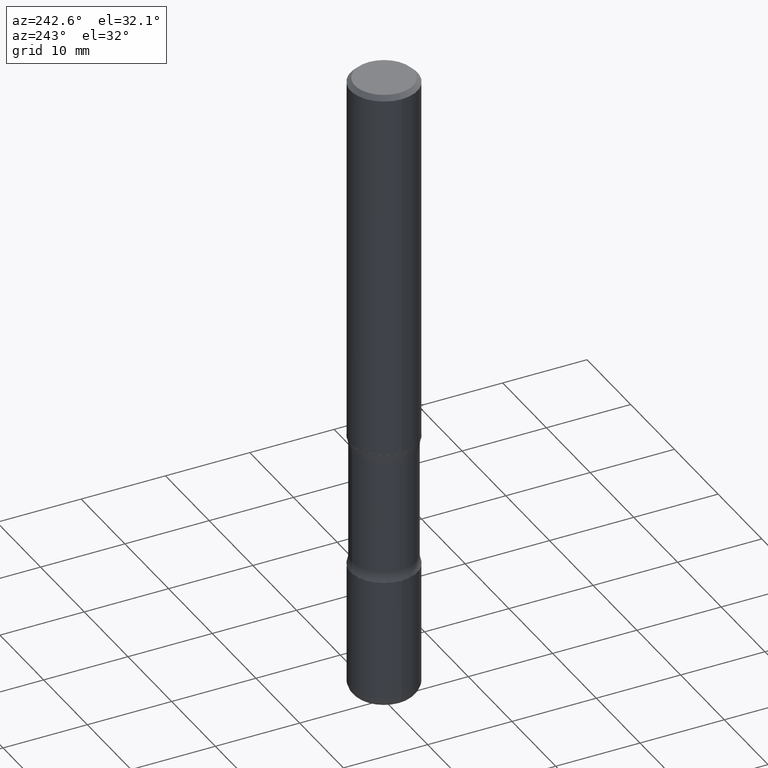
[diagram: clean part render]
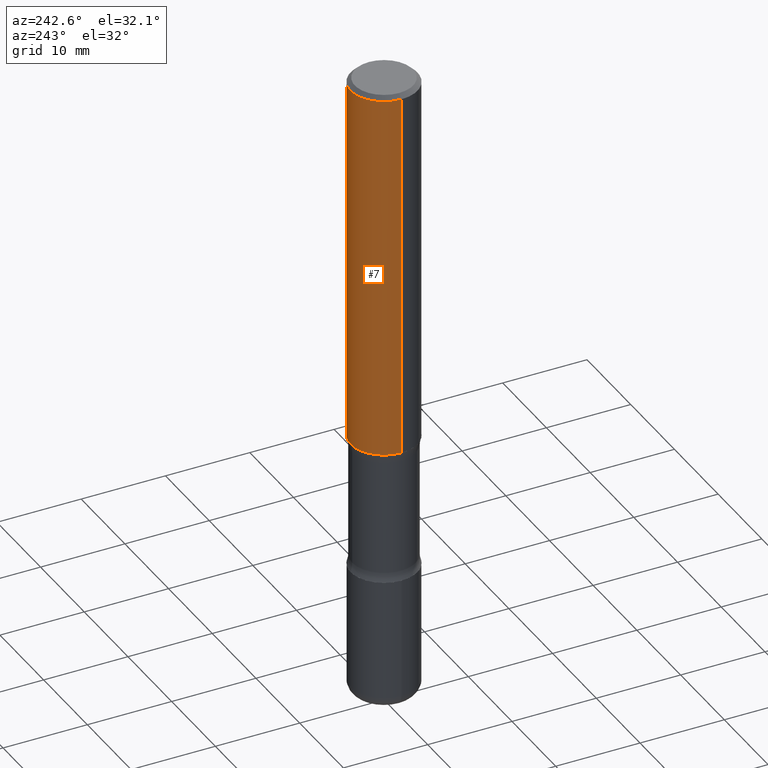
[diagram: same view with one face highlighted and labeled with its STEP entity id]
A machine part, auxiliary view. The second image highlights one B-rep face of the part: STEP entity #7.
In plain terms, the highlighted cylindrical surface (partial cylindrical patch) has radius 3.9687 mm, axis along (-0, 0, 1).
Its self-contained STEP definition (entity closure, byte-faithful):
#7 = ADVANCED_FACE ( 'NONE', ( #85 ), #369, .T. ) ;
#26 = VERTEX_POINT ( 'NONE', #294 ) ;
#30 = VECTOR ( 'NONE', #549, 39.37007874015748143 ) ;
#32 = LINE ( 'NONE', #332, #479 ) ;
#35 = CARTESIAN_POINT ( 'NONE',  ( -0.1562500000000000833, -1.979737960251025472E-15, -1.750000000000000444 ) ) ;
#36 = AXIS2_PLACEMENT_3D ( 'NONE', #46, #327, #501 ) ;
#46 = CARTESIAN_POINT ( 'NONE',  ( 0.000000000000000000, 0.000000000000000000, 0.000000000000000000 ) ) ;
#71 = CIRCLE ( 'NONE', #506, 0.1562499999999998612 ) ;
#76 = EDGE_LOOP ( 'NONE', ( #348, #551, #532, #443 ) ) ;
#85 = FACE_OUTER_BOUND ( 'NONE', #76, .T. ) ;
#119 = CARTESIAN_POINT ( 'NONE',  ( -0.1562499999999999722, 1.110223024625156343E-15, -7.685836078523288357E-30 ) ) ;
#134 = DIRECTION ( 'NONE',  ( -2.445468806185136597E-29, 3.491481338843145583E-15, 1.000000000000000000 ) ) ;
#220 = DIRECTION ( 'NONE',  ( 1.000000000000000000, -6.982962677686266711E-15, 0.000000000000000000 ) ) ;
#237 = EDGE_CURVE ( 'NONE', #401, #363, #32, .T. ) ;
#268 = DIRECTION ( 'NONE',  ( -2.445468806185136597E-29, 3.491481338843145583E-15, 1.000000000000000000 ) ) ;
#271 = EDGE_CURVE ( 'NONE', #286, #26, #285, .T. ) ;
#285 = LINE ( 'NONE', #119, #30 ) ;
#286 = VERTEX_POINT ( 'NONE', #35 ) ;
#294 = CARTESIAN_POINT ( 'NONE',  ( -0.1562499999999998612, 1.021258291611615284E-15, -0.02000000000000000042 ) ) ;
#302 = DIRECTION ( 'NONE',  ( 1.000000000000000000, -6.982962677686265133E-15, 0.000000000000000000 ) ) ;
#327 = DIRECTION ( 'NONE',  ( -2.445468806185136597E-29, 3.491481338843145583E-15, 1.000000000000000000 ) ) ;
#332 = CARTESIAN_POINT ( 'NONE',  ( 0.1562499999999999722, -1.091087918388478976E-15, 7.619026212181148976E-30 ) ) ;
#348 = ORIENTED_EDGE ( 'NONE', *, *, #397, .T. ) ;
#352 = CARTESIAN_POINT ( 'NONE',  ( 4.890937612370273159E-31, -6.982962677686291609E-17, -0.02000000000000000042 ) ) ;
#363 = VERTEX_POINT ( 'NONE', #415 ) ;
#369 = CYLINDRICAL_SURFACE ( 'NONE', #36, 0.1562499999999999722 ) ;
#373 = CARTESIAN_POINT ( 'NONE',  ( 0.1562500000000000833, -7.201180261363985422E-15, -1.750000000000000444 ) ) ;
#397 = EDGE_CURVE ( 'NONE', #401, #286, #434, .T. ) ;
#401 = VERTEX_POINT ( 'NONE', #373 ) ;
#415 = CARTESIAN_POINT ( 'NONE',  ( 0.1562499999999998612, -1.141782438928663922E-15, -0.02000000000000000042 ) ) ;
#434 = CIRCLE ( 'NONE', #509, 0.1562500000000000833 ) ;
#443 = ORIENTED_EDGE ( 'NONE', *, *, #237, .F. ) ;
#479 = VECTOR ( 'NONE', #503, 39.37007874015748143 ) ;
#501 = DIRECTION ( 'NONE',  ( 1.000000000000000000, -6.982962677686266711E-15, 4.876176775795936353E-29 ) ) ;
#503 = DIRECTION ( 'NONE',  ( -2.445468806185136877E-29, 3.491481338843145188E-15, 1.000000000000000000 ) ) ;
#506 = AXIS2_PLACEMENT_3D ( 'NONE', #352, #268, #220 ) ;
#509 = AXIS2_PLACEMENT_3D ( 'NONE', #515, #134, #302 ) ;
#515 = CARTESIAN_POINT ( 'NONE',  ( 4.279570410823989605E-29, -6.110092342975506249E-15, -1.750000000000000444 ) ) ;
#532 = ORIENTED_EDGE ( 'NONE', *, *, #550, .F. ) ;
#549 = DIRECTION ( 'NONE',  ( -2.445468806185136877E-29, 3.491481338843145188E-15, 1.000000000000000000 ) ) ;
#550 = EDGE_CURVE ( 'NONE', #363, #26, #71, .T. ) ;
#551 = ORIENTED_EDGE ( 'NONE', *, *, #271, .T. ) ;